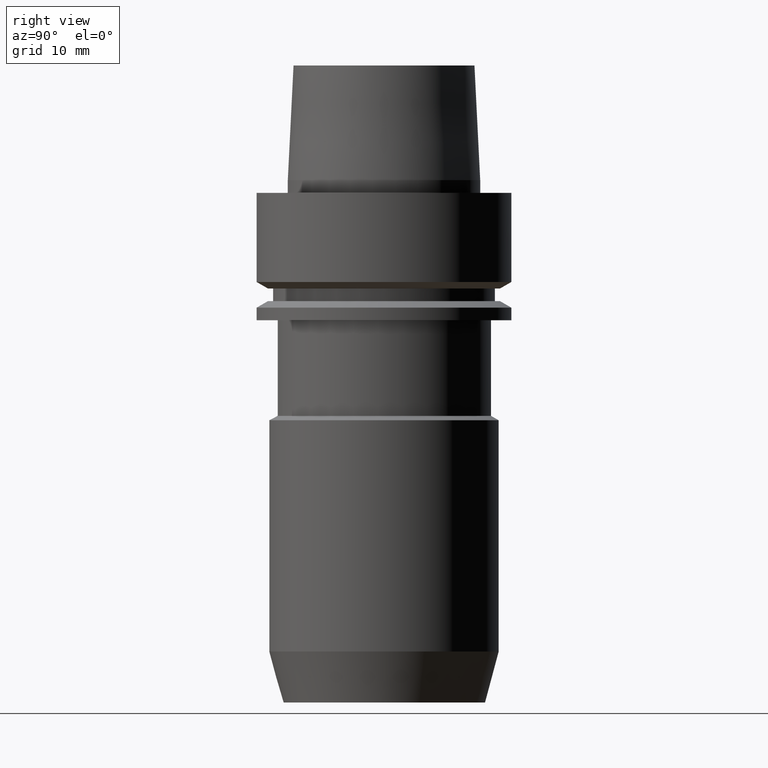
[diagram: clean part render]
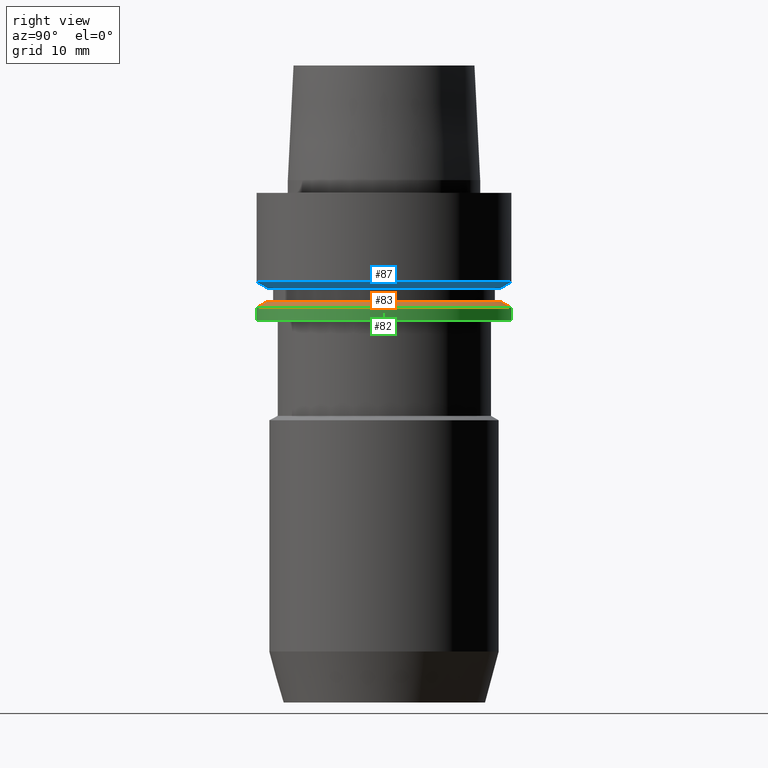
[diagram: same view with three faces highlighted in distinct colors, each labeled with its STEP entity id]
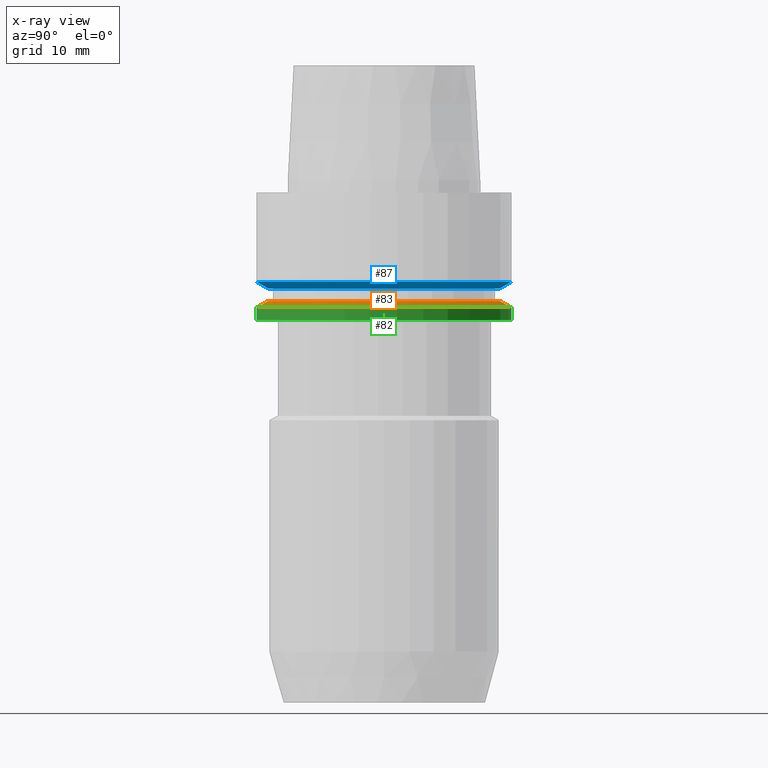
[diagram: x-ray of the same camera — body ghosted, the three highlighted faces saturated]
A machine part, right view with three faces highlighted in distinct colors.
The next image is the same camera in x-ray (body ghosted, the three faces saturated) — at least one of them is partly hidden behind the body in this view.
Their STEP definitions:

[orange] entity #83 — the highlighted conical surface has half-angle 60 deg.
#83=ADVANCED_FACE('',(#116,#117),#118,.T.);
#116=FACE_BOUND('',#165,.T.);
#117=FACE_BOUND('',#166,.T.);
#118=CONICAL_SURFACE('',#167,19.116025405,1.04719755151904);
#165=EDGE_LOOP('',(#230));
#166=EDGE_LOOP('',(#231));
#167=AXIS2_PLACEMENT_3D('',#232,#233,#234);
#230=ORIENTED_EDGE('',*,*,#283,.F.);
#231=ORIENTED_EDGE('',*,*,#282,.T.);
#232=CARTESIAN_POINT('',(1.07220049815594E-015,2.14440099631188E-015,-17.51036297));
#233=DIRECTION('',(6.12323399573677E-017,1.22464679914735E-016,-1.0));
#234=DIRECTION('',(-1.23259516440783E-032,1.0,1.22464679914735E-016));
#282=EDGE_CURVE('',#306,#306,#307,.T.);
#283=EDGE_CURVE('',#308,#308,#309,.T.);
#306=VERTEX_POINT('',#338);
#307=CIRCLE('',#339,20.0);
#308=VERTEX_POINT('',#340);
#309=CIRCLE('',#341,18.23205081);
#338=CARTESIAN_POINT('',(1.10345121703663E-015,20.0,-18.02072594));
#339=AXIS2_PLACEMENT_3D('',#378,#379,#380);
#340=CARTESIAN_POINT('',(1.04094977927525E-015,18.23205081,-17.0));
#341=AXIS2_PLACEMENT_3D('',#381,#382,#383);
#378=CARTESIAN_POINT('',(1.10345121703663E-015,2.20690243407327E-015,-18.02072594));
#379=DIRECTION('',(-6.12323399573677E-017,-1.22464679914735E-016,1.0));
#380=DIRECTION('',(-1.23259516440783E-032,1.0,1.22464679914735E-016));
#381=CARTESIAN_POINT('',(1.04094977927525E-015,2.0818995585505E-015,-17.0));
#382=DIRECTION('',(-6.12323399573677E-017,-1.22464679914735E-016,1.0));
#383=DIRECTION('',(-1.23259516440783E-032,1.0,1.22464679914735E-016));

[blue] entity #87 — the highlighted conical surface has half-angle 60 deg.
#87=ADVANCED_FACE('',(#128,#129),#130,.T.);
#128=FACE_BOUND('',#177,.T.);
#129=FACE_BOUND('',#178,.T.);
#130=CONICAL_SURFACE('',#179,19.116025405,1.04719755151904);
#177=EDGE_LOOP('',(#250));
#178=EDGE_LOOP('',(#251));
#179=AXIS2_PLACEMENT_3D('',#252,#253,#254);
#250=ORIENTED_EDGE('',*,*,#287,.F.);
#251=ORIENTED_EDGE('',*,*,#286,.T.);
#252=CARTESIAN_POINT('',(8.87234380479823E-016,1.77446876095965E-015,-14.48963703));
#253=DIRECTION('',(-6.12323399573677E-017,-1.22464679914735E-016,1.0));
#254=DIRECTION('',(-1.23259516440783E-032,1.0,1.22464679914735E-016));
#286=EDGE_CURVE('',#314,#314,#315,.T.);
#287=EDGE_CURVE('',#316,#316,#317,.T.);
#314=VERTEX_POINT('',#346);
#315=CIRCLE('',#347,18.23205081);
#316=VERTEX_POINT('',#348);
#317=CIRCLE('',#349,20.0);
#346=CARTESIAN_POINT('',(9.18485099360515E-016,18.23205081,-15.0));
#347=AXIS2_PLACEMENT_3D('',#390,#391,#392);
#348=CARTESIAN_POINT('',(8.55983661599131E-016,20.0,-13.97927406));
#349=AXIS2_PLACEMENT_3D('',#393,#394,#395);
#390=CARTESIAN_POINT('',(9.18485099360515E-016,1.83697019872103E-015,-15.0));
#391=DIRECTION('',(-6.12323399573677E-017,-1.22464679914735E-016,1.0));
#392=DIRECTION('',(-1.23259516440783E-032,1.0,1.22464679914735E-016));
#393=CARTESIAN_POINT('',(8.55983661599131E-016,1.71196732319826E-015,-13.97927406));
#394=DIRECTION('',(-6.12323399573677E-017,-1.22464679914735E-016,1.0));
#395=DIRECTION('',(-1.23259516440783E-032,1.0,1.22464679914735E-016));

[green] entity #82 — the highlighted cylindrical surface (bore or boss wall) has radius 20 mm, axis along (0, 0, -1).
#82=ADVANCED_FACE('',(#113,#114),#115,.T.);
#113=FACE_BOUND('',#162,.T.);
#114=FACE_BOUND('',#163,.T.);
#115=CYLINDRICAL_SURFACE('',#164,20.0);
#162=EDGE_LOOP('',(#225));
#163=EDGE_LOOP('',(#226));
#164=AXIS2_PLACEMENT_3D('',#227,#228,#229);
#225=ORIENTED_EDGE('',*,*,#282,.F.);
#226=ORIENTED_EDGE('',*,*,#281,.T.);
#227=CARTESIAN_POINT('',(1.16404900809199E-015,2.32809801618399E-015,-19.01036297));
#228=DIRECTION('',(6.12323399573677E-017,1.22464679914735E-016,-1.0));
#229=DIRECTION('',(-1.23259516440783E-032,1.0,1.22464679914735E-016));
#281=EDGE_CURVE('',#304,#304,#305,.T.);
#282=EDGE_CURVE('',#306,#306,#307,.T.);
#304=VERTEX_POINT('',#336);
#305=CIRCLE('',#337,20.0);
#306=VERTEX_POINT('',#338);
#307=CIRCLE('',#339,20.0);
#336=CARTESIAN_POINT('',(1.22464679914735E-015,20.0,-20.0));
#337=AXIS2_PLACEMENT_3D('',#375,#376,#377);
#338=CARTESIAN_POINT('',(1.10345121703663E-015,20.0,-18.02072594));
#339=AXIS2_PLACEMENT_3D('',#378,#379,#380);
#375=CARTESIAN_POINT('',(1.22464679914735E-015,2.44929359829471E-015,-20.0));
#376=DIRECTION('',(-6.12323399573677E-017,-1.22464679914735E-016,1.0));
#377=DIRECTION('',(-1.23259516440783E-032,1.0,1.22464679914735E-016));
#378=CARTESIAN_POINT('',(1.10345121703663E-015,2.20690243407327E-015,-18.02072594));
#379=DIRECTION('',(-6.12323399573677E-017,-1.22464679914735E-016,1.0));
#380=DIRECTION('',(-1.23259516440783E-032,1.0,1.22464679914735E-016));